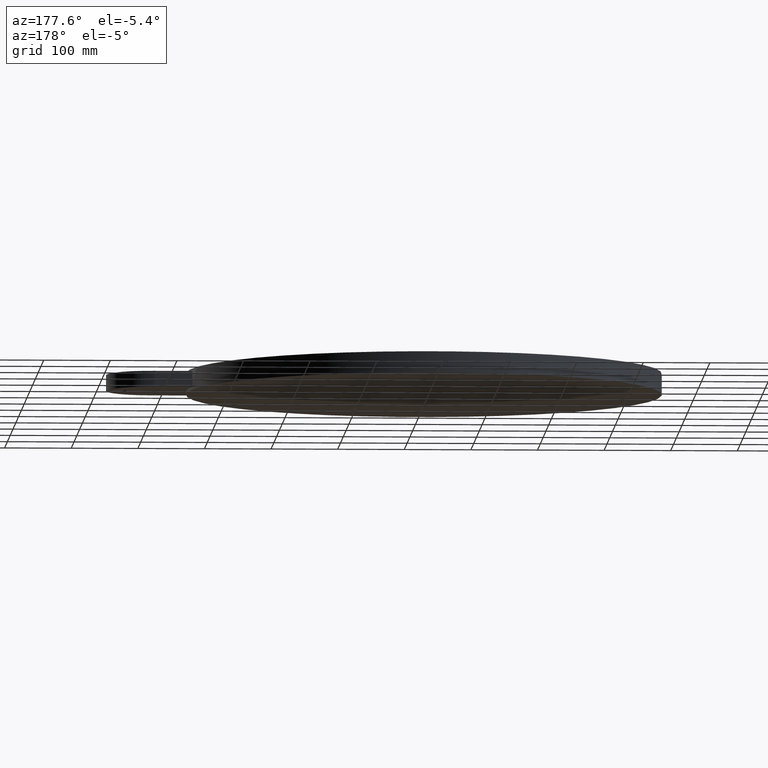
[diagram: clean part render]
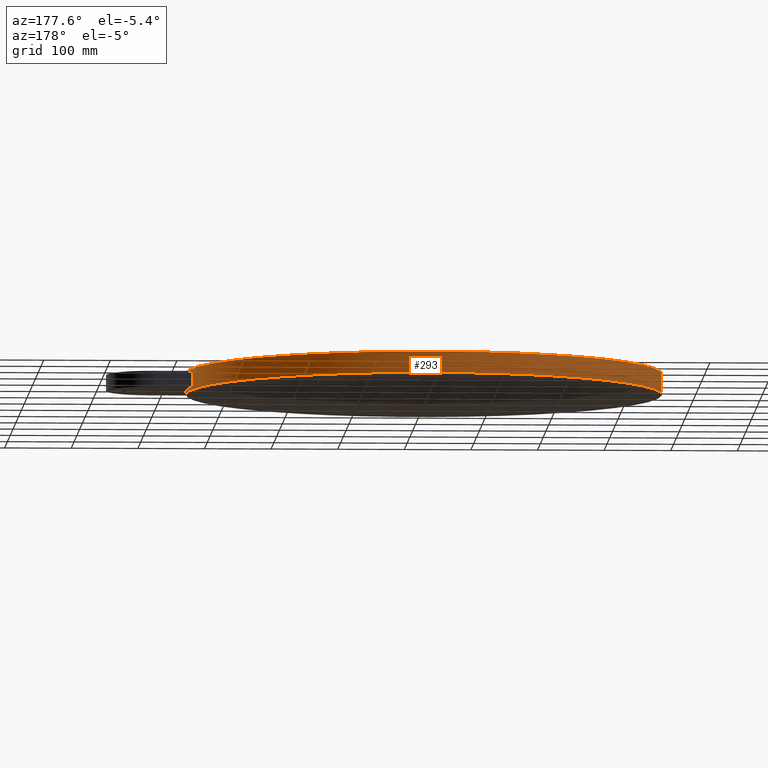
[diagram: same view with one face highlighted and labeled with its STEP entity id]
A machine part, auxiliary view. The second image highlights one B-rep face of the part: STEP entity #293.
In plain terms, the highlighted cylindrical surface (partial cylindrical patch) has radius 357.124 mm, axis along (0, 0, 1).
Its self-contained STEP definition (entity closure, byte-faithful):
#89=AXIS2_PLACEMENT_3D('Circle Axis2P3D',#87,#88,$) ;
#239=AXIS2_PLACEMENT_3D('Circle Axis2P3D',#237,#238,$) ;
#250=AXIS2_PLACEMENT_3D('Cylinder Axis2P3D',#247,#248,#249) ;
#266=AXIS2_PLACEMENT_3D('Circle Axis2P3D',#264,#265,$) ;
#280=AXIS2_PLACEMENT_3D('Circle Axis2P3D',#278,#279,$) ;
#84=CARTESIAN_POINT('Vertex',(14.0600000001,0.,-0.468750000002)) ;
#87=CARTESIAN_POINT('Axis2P3D Location',(1.00706844438E-013,7.97262518471E-015,-0.468750000002)) ;
#91=CARTESIAN_POINT('Vertex',(13.7884408111,2.75000000001,-0.468750000002)) ;
#161=CARTESIAN_POINT('Line Origine',(13.7884408111,2.75000000001,6.99353086378E-017)) ;
#165=CARTESIAN_POINT('Vertex',(13.7884408111,2.75000000001,0.468750000002)) ;
#232=CARTESIAN_POINT('Vertex',(-14.0600000001,1.72185339961E-015,-0.625000000003)) ;
#234=CARTESIAN_POINT('Vertex',(14.0600000001,0.,-0.625000000003)) ;
#237=CARTESIAN_POINT('Axis2P3D Location',(0.,0.,-0.625000000003)) ;
#247=CARTESIAN_POINT('Axis2P3D Location',(0.,0.,-1.39870617276E-016)) ;
#252=CARTESIAN_POINT('Line Origine',(14.0600000001,0.,-1.39870617276E-016)) ;
#257=CARTESIAN_POINT('Line Origine',(-14.0600000001,1.72185339961E-015,-1.39870617276E-016)) ;
#261=CARTESIAN_POINT('Vertex',(-14.0600000001,1.72185339961E-015,0.625000000002)) ;
#264=CARTESIAN_POINT('Axis2P3D Location',(0.,0.,0.625000000002)) ;
#268=CARTESIAN_POINT('Vertex',(14.0600000001,0.,0.625000000002)) ;
#271=CARTESIAN_POINT('Line Origine',(14.0600000001,0.,-1.39870617276E-016)) ;
#275=CARTESIAN_POINT('Vertex',(14.0600000001,0.,0.468750000002)) ;
#278=CARTESIAN_POINT('Axis2P3D Location',(0.,0.,0.468750000002)) ;
#88=DIRECTION('Axis2P3D Direction',(0.,0.,0.0393700787402)) ;
#162=DIRECTION('Vector Direction',(0.,0.,0.0393700787402)) ;
#238=DIRECTION('Axis2P3D Direction',(0.,0.,0.0393700787402)) ;
#248=DIRECTION('Axis2P3D Direction',(0.,0.,0.0393700787402)) ;
#249=DIRECTION('Axis2P3D XDirection',(-0.0393700787402,4.82144409113E-018,0.)) ;
#253=DIRECTION('Vector Direction',(0.,0.,0.0393700787402)) ;
#258=DIRECTION('Vector Direction',(0.,0.,0.0393700787402)) ;
#265=DIRECTION('Axis2P3D Direction',(0.,0.,0.0393700787402)) ;
#272=DIRECTION('Vector Direction',(0.,0.,0.0393700787402)) ;
#279=DIRECTION('Axis2P3D Direction',(0.,0.,0.0393700787402)) ;
#163=VECTOR('Line Direction',#162,0.0393700787402) ;
#254=VECTOR('Line Direction',#253,0.0393700787402) ;
#259=VECTOR('Line Direction',#258,0.0393700787402) ;
#273=VECTOR('Line Direction',#272,0.0393700787402) ;
#284=ORIENTED_EDGE('',*,*,#256,.F.) ;
#285=ORIENTED_EDGE('',*,*,#241,.T.) ;
#286=ORIENTED_EDGE('',*,*,#263,.T.) ;
#287=ORIENTED_EDGE('',*,*,#270,.F.) ;
#288=ORIENTED_EDGE('',*,*,#277,.F.) ;
#289=ORIENTED_EDGE('',*,*,#282,.T.) ;
#290=ORIENTED_EDGE('',*,*,#167,.F.) ;
#291=ORIENTED_EDGE('',*,*,#93,.F.) ;
#293=ADVANCED_FACE('PartBody',(#292),#251,.T.) ;
#90=CIRCLE('generated circle',#89,14.0600000001) ;
#240=CIRCLE('generated circle',#239,14.0600000001) ;
#267=CIRCLE('generated circle',#266,14.0600000001) ;
#281=CIRCLE('generated circle',#280,14.0600000001) ;
#251=CYLINDRICAL_SURFACE('generated cylinder',#250,14.0600000001) ;
#93=EDGE_CURVE('',#85,#92,#90,.T.) ;
#167=EDGE_CURVE('',#92,#166,#164,.T.) ;
#241=EDGE_CURVE('',#235,#233,#240,.T.) ;
#256=EDGE_CURVE('',#235,#85,#255,.T.) ;
#263=EDGE_CURVE('',#233,#262,#260,.T.) ;
#270=EDGE_CURVE('',#269,#262,#267,.T.) ;
#277=EDGE_CURVE('',#276,#269,#274,.T.) ;
#282=EDGE_CURVE('',#276,#166,#281,.T.) ;
#283=EDGE_LOOP('',(#284,#285,#286,#287,#288,#289,#290,#291)) ;
#292=FACE_OUTER_BOUND('',#283,.T.) ;
#164=LINE('Line',#161,#163) ;
#255=LINE('Line',#252,#254) ;
#260=LINE('Line',#257,#259) ;
#274=LINE('Line',#271,#273) ;
#85=VERTEX_POINT('',#84) ;
#92=VERTEX_POINT('',#91) ;
#166=VERTEX_POINT('',#165) ;
#233=VERTEX_POINT('',#232) ;
#235=VERTEX_POINT('',#234) ;
#262=VERTEX_POINT('',#261) ;
#269=VERTEX_POINT('',#268) ;
#276=VERTEX_POINT('',#275) ;